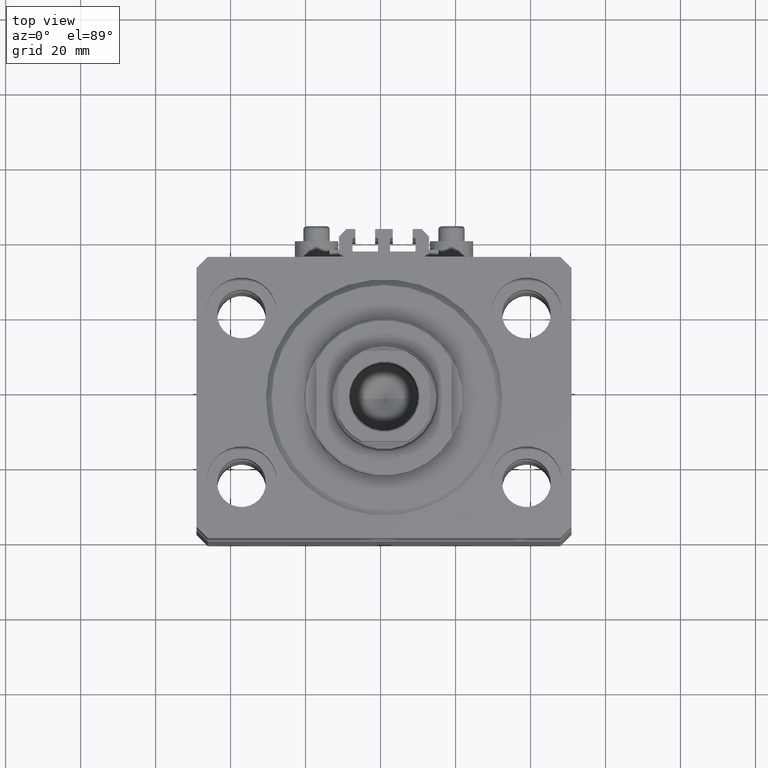
[diagram: clean part render]
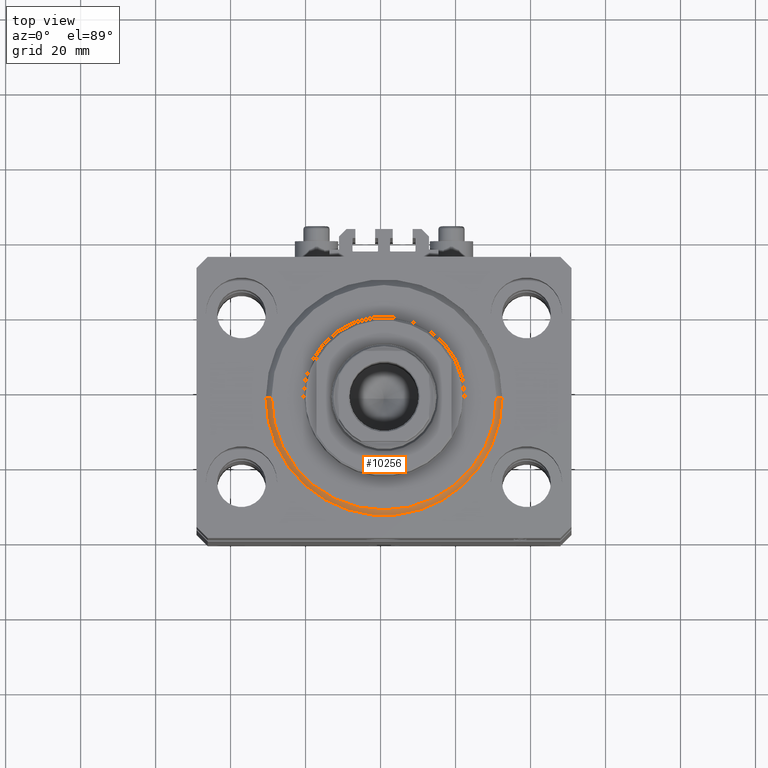
[diagram: same view with one face highlighted and labeled with its STEP entity id]
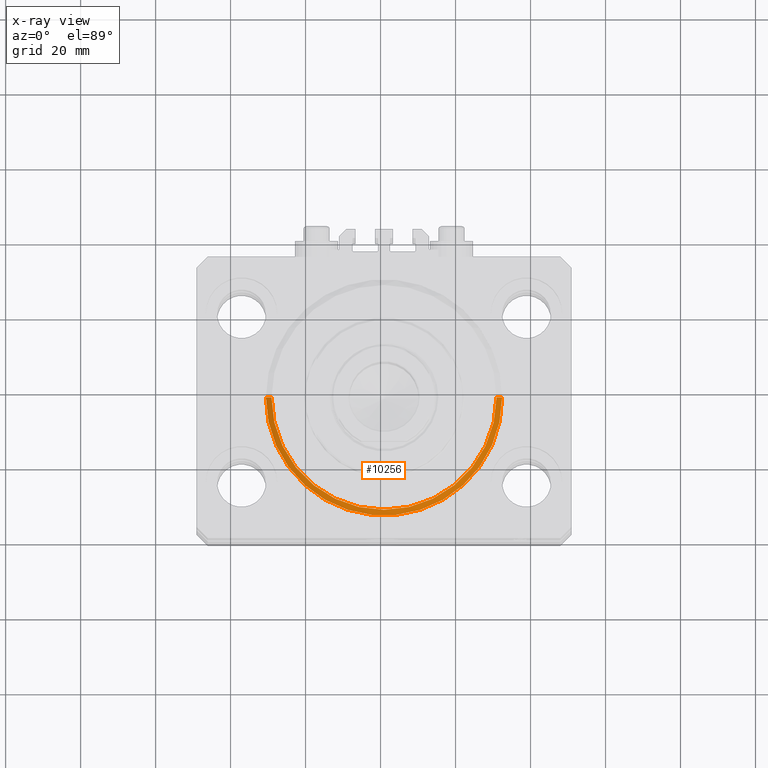
[diagram: x-ray of the same camera — body ghosted, the highlighted face saturated]
A machine part, top view. The second image highlights one B-rep face of the part: STEP entity #10256.
The next image is the same camera in x-ray: the body ghosted, the highlighted face saturated — about 0% of this face is hidden behind the body in this view.
In plain terms, the highlighted conical surface has half-angle 45 deg.
Its self-contained STEP definition (entity closure, byte-faithful):
#925 = CARTESIAN_POINT ( 'NONE',  ( 0.000000000000000000, 0.000000000000000000, 1.499999999999980460 ) ) ;
#1136 = LINE ( 'NONE', #35065, #23162 ) ;
#3017 = AXIS2_PLACEMENT_3D ( 'NONE', #925, #15400, #45004 ) ;
#4417 = DIRECTION ( 'NONE',  ( -0.7071067811865474617, 8.659560562354932858E-17, 0.7071067811865474617 ) ) ;
#7332 = LINE ( 'NONE', #36715, #41128 ) ;
#8500 = DIRECTION ( 'NONE',  ( -0.000000000000000000, -0.000000000000000000, 1.000000000000000000 ) ) ;
#9393 = VERTEX_POINT ( 'NONE', #19367 ) ;
#9873 = VERTEX_POINT ( 'NONE', #23099 ) ;
#10256 = ADVANCED_FACE ( 'NONE', ( #26315 ), #15349, .T. ) ;
#11409 = CARTESIAN_POINT ( 'NONE',  ( 0.000000000000000000, 0.000000000000000000, 1.499999999999980460 ) ) ;
#12463 = DIRECTION ( 'NONE',  ( 0.7071067811865474617, 0.000000000000000000, 0.7071067811865474617 ) ) ;
#13477 = AXIS2_PLACEMENT_3D ( 'NONE', #21171, #17334, #17809 ) ;
#15349 = CONICAL_SURFACE ( 'NONE', #45356, 31.50000000000000000, 0.7853981633974482790 ) ;
#15400 = DIRECTION ( 'NONE',  ( -0.000000000000000000, -0.000000000000000000, 1.000000000000000000 ) ) ;
#15720 = DIRECTION ( 'NONE',  ( 1.000000000000000000, 0.000000000000000000, 0.000000000000000000 ) ) ;
#17334 = DIRECTION ( 'NONE',  ( -0.000000000000000000, -0.000000000000000000, -1.000000000000000000 ) ) ;
#17809 = DIRECTION ( 'NONE',  ( 1.000000000000000000, 0.000000000000000000, 0.000000000000000000 ) ) ;
#18321 = EDGE_CURVE ( 'NONE', #18737, #40479, #33515, .T. ) ;
#18737 = VERTEX_POINT ( 'NONE', #45133 ) ;
#19299 = ORIENTED_EDGE ( 'NONE', *, *, #35095, .T. ) ;
#19367 = CARTESIAN_POINT ( 'NONE',  ( -31.50000000000000000, 0.000000000000000000, 1.499999999999980460 ) ) ;
#21171 = CARTESIAN_POINT ( 'NONE',  ( 0.000000000000000000, 0.000000000000000000, 0.000000000000000000 ) ) ;
#23099 = CARTESIAN_POINT ( 'NONE',  ( 31.50000000000000000, 3.857637417314162689E-15, 1.499999999999980460 ) ) ;
#23162 = VECTOR ( 'NONE', #12463, 1000.000000000000114 ) ;
#26315 = FACE_OUTER_BOUND ( 'NONE', #40405, .T. ) ;
#30813 = CARTESIAN_POINT ( 'NONE',  ( -30.00000000000002132, 3.765788907378112117E-15, 0.000000000000000000 ) ) ;
#31450 = ORIENTED_EDGE ( 'NONE', *, *, #31533, .F. ) ;
#31533 = EDGE_CURVE ( 'NONE', #9393, #9873, #34562, .T. ) ;
#33515 = CIRCLE ( 'NONE', #13477, 30.00000000000002132 ) ;
#34562 = CIRCLE ( 'NONE', #3017, 31.50000000000000000 ) ;
#35065 = CARTESIAN_POINT ( 'NONE',  ( 31.50000000000000000, 0.000000000000000000, 1.499999999999980460 ) ) ;
#35095 = EDGE_CURVE ( 'NONE', #18737, #9873, #1136, .T. ) ;
#36715 = CARTESIAN_POINT ( 'NONE',  ( -31.50000000000000000, 3.857637417314162689E-15, 1.499999999999980460 ) ) ;
#38845 = ORIENTED_EDGE ( 'NONE', *, *, #43928, .F. ) ;
#40405 = EDGE_LOOP ( 'NONE', ( #38845, #42466, #19299, #31450 ) ) ;
#40479 = VERTEX_POINT ( 'NONE', #30813 ) ;
#41128 = VECTOR ( 'NONE', #4417, 1000.000000000000114 ) ;
#42466 = ORIENTED_EDGE ( 'NONE', *, *, #18321, .F. ) ;
#43928 = EDGE_CURVE ( 'NONE', #40479, #9393, #7332, .T. ) ;
#45004 = DIRECTION ( 'NONE',  ( 1.000000000000000000, 0.000000000000000000, 0.000000000000000000 ) ) ;
#45133 = CARTESIAN_POINT ( 'NONE',  ( 30.00000000000002132, 0.000000000000000000, 0.000000000000000000 ) ) ;
#45356 = AXIS2_PLACEMENT_3D ( 'NONE', #11409, #8500, #15720 ) ;